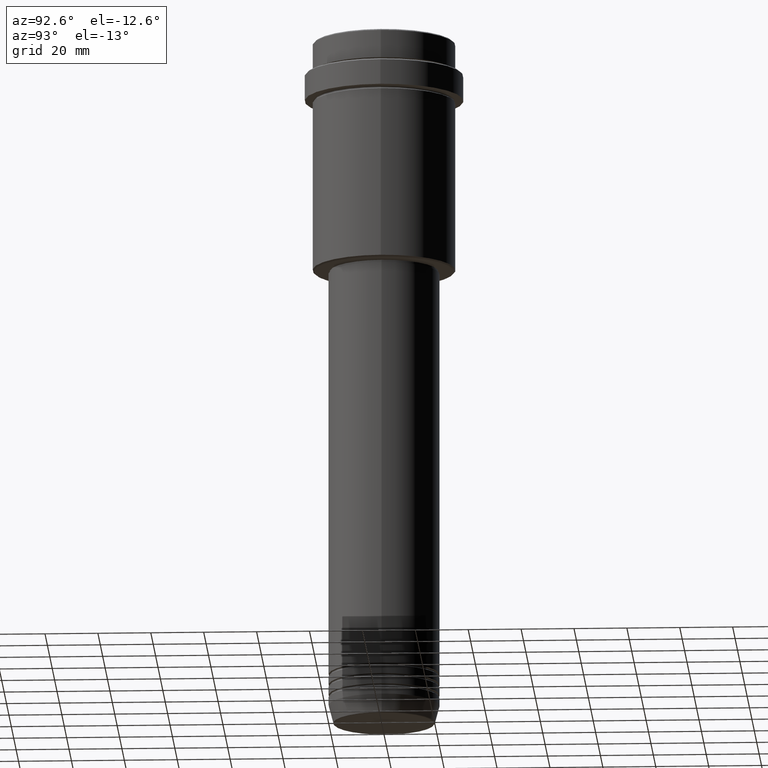
[diagram: clean part render]
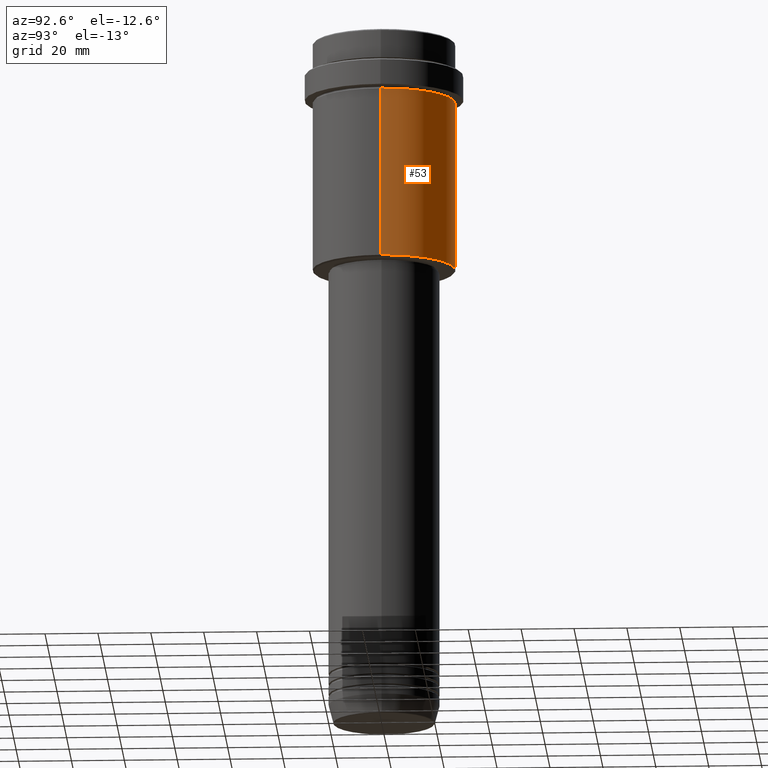
[diagram: same view with one face highlighted and labeled with its STEP entity id]
A machine part, auxiliary view. The second image highlights one B-rep face of the part: STEP entity #53.
In plain terms, the highlighted cylindrical surface (partial cylindrical patch) has radius 27 mm, axis along (-0, -0, 1).
Its self-contained STEP definition (entity closure, byte-faithful):
#17 = CYLINDRICAL_SURFACE ( 'NONE', #1219, 26.99999999999999645 ) ;
#22 = ORIENTED_EDGE ( 'NONE', *, *, #454, .T. ) ;
#26 = VERTEX_POINT ( 'NONE', #135 ) ;
#34 = VERTEX_POINT ( 'NONE', #1196 ) ;
#53 = ADVANCED_FACE ( 'NONE', ( #112 ), #17, .T. ) ;
#93 = ORIENTED_EDGE ( 'NONE', *, *, #727, .F. ) ;
#112 = FACE_OUTER_BOUND ( 'NONE', #1066, .T. ) ;
#118 = DIRECTION ( 'NONE',  ( 1.000000000000000000, 0.000000000000000000, 0.000000000000000000 ) ) ;
#135 = CARTESIAN_POINT ( 'NONE',  ( 26.99999999999999645, 0.000000000000000000, -87.50000000000004263 ) ) ;
#180 = CARTESIAN_POINT ( 'NONE',  ( 26.99999999999999645, 0.000000000000000000, 0.000000000000000000 ) ) ;
#207 = VERTEX_POINT ( 'NONE', #538 ) ;
#234 = VERTEX_POINT ( 'NONE', #772 ) ;
#279 = DIRECTION ( 'NONE',  ( -1.000000000000000000, 0.000000000000000000, 0.000000000000000000 ) ) ;
#319 = DIRECTION ( 'NONE',  ( -0.000000000000000000, -0.000000000000000000, 1.000000000000000000 ) ) ;
#395 = AXIS2_PLACEMENT_3D ( 'NONE', #711, #1142, #279 ) ;
#454 = EDGE_CURVE ( 'NONE', #26, #234, #1101, .T. ) ;
#512 = VECTOR ( 'NONE', #1068, 1000.000000000000000 ) ;
#538 = CARTESIAN_POINT ( 'NONE',  ( -26.99999999999999645, 3.306546357697853339E-15, -23.00000000000000000 ) ) ;
#551 = DIRECTION ( 'NONE',  ( -0.000000000000000000, -0.000000000000000000, 1.000000000000000000 ) ) ;
#558 = ORIENTED_EDGE ( 'NONE', *, *, #983, .T. ) ;
#577 = EDGE_CURVE ( 'NONE', #26, #34, #841, .T. ) ;
#598 = CARTESIAN_POINT ( 'NONE',  ( -26.99999999999999645, 3.306546357697853339E-15, 0.000000000000000000 ) ) ;
#711 = CARTESIAN_POINT ( 'NONE',  ( 0.000000000000000000, 0.000000000000000000, -87.50000000000004263 ) ) ;
#727 = EDGE_CURVE ( 'NONE', #34, #207, #1016, .T. ) ;
#772 = CARTESIAN_POINT ( 'NONE',  ( -26.99999999999999645, 3.306546357697853339E-15, -87.50000000000004263 ) ) ;
#808 = VECTOR ( 'NONE', #813, 1000.000000000000000 ) ;
#813 = DIRECTION ( 'NONE',  ( -0.000000000000000000, -0.000000000000000000, 1.000000000000000000 ) ) ;
#841 = LINE ( 'NONE', #180, #512 ) ;
#868 = DIRECTION ( 'NONE',  ( 1.000000000000000000, 0.000000000000000000, 0.000000000000000000 ) ) ;
#983 = EDGE_CURVE ( 'NONE', #234, #207, #1025, .T. ) ;
#987 = CARTESIAN_POINT ( 'NONE',  ( 0.000000000000000000, 0.000000000000000000, 0.000000000000000000 ) ) ;
#999 = ORIENTED_EDGE ( 'NONE', *, *, #577, .F. ) ;
#1016 = CIRCLE ( 'NONE', #1246, 26.99999999999999645 ) ;
#1025 = LINE ( 'NONE', #598, #808 ) ;
#1066 = EDGE_LOOP ( 'NONE', ( #22, #558, #93, #999 ) ) ;
#1068 = DIRECTION ( 'NONE',  ( -0.000000000000000000, -0.000000000000000000, 1.000000000000000000 ) ) ;
#1101 = CIRCLE ( 'NONE', #395, 26.99999999999999645 ) ;
#1142 = DIRECTION ( 'NONE',  ( -0.000000000000000000, -0.000000000000000000, 1.000000000000000000 ) ) ;
#1196 = CARTESIAN_POINT ( 'NONE',  ( 26.99999999999999645, 0.000000000000000000, -23.00000000000000000 ) ) ;
#1219 = AXIS2_PLACEMENT_3D ( 'NONE', #987, #319, #118 ) ;
#1246 = AXIS2_PLACEMENT_3D ( 'NONE', #1284, #551, #868 ) ;
#1284 = CARTESIAN_POINT ( 'NONE',  ( 0.000000000000000000, 0.000000000000000000, -23.00000000000000000 ) ) ;